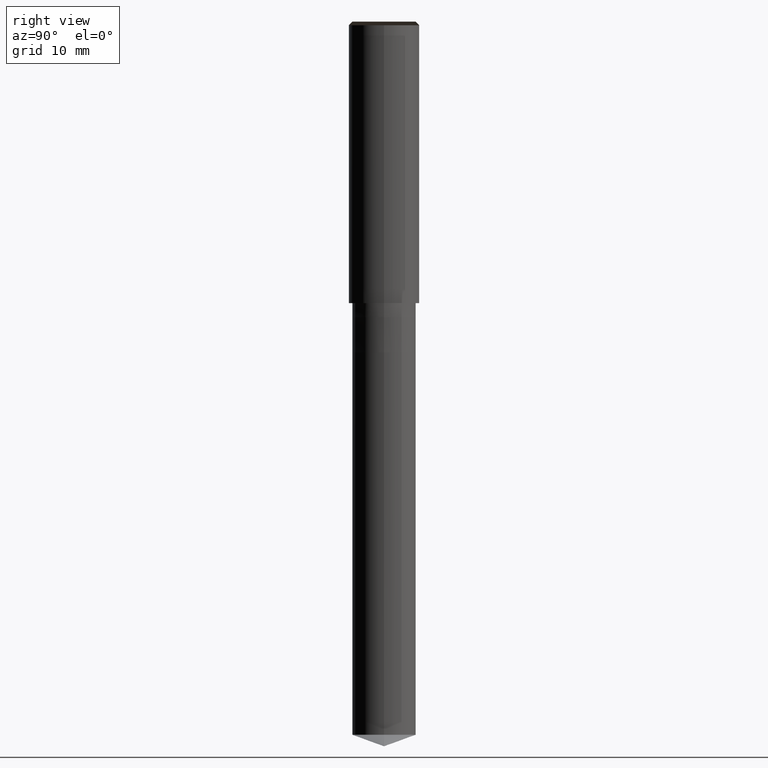
[diagram: clean part render]
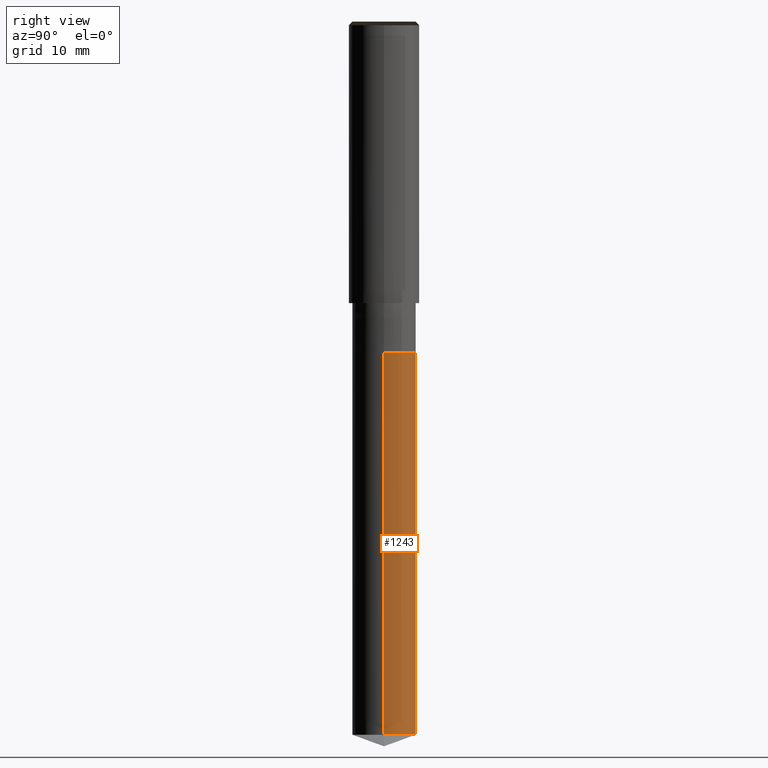
[diagram: same view with one face highlighted and labeled with its STEP entity id]
A machine part, right view. The second image highlights one B-rep face of the part: STEP entity #1243.
In plain terms, the highlighted face is a freeform B-spline surface patch.
Its self-contained STEP definition (entity closure, byte-faithful):
#1145=CARTESIAN_POINT('',(4.5,0.0,-61.362133945802));
#1146=CARTESIAN_POINT('',(4.5,4.5,-61.362133945802));
#1147=CARTESIAN_POINT('',(0.0,4.5,-61.362133945802));
#1148=CARTESIAN_POINT('',(-4.5,4.5,-61.362133945802));
#1149=CARTESIAN_POINT('',(-4.5,0.0,-61.362133945802));
#1150=CARTESIAN_POINT('',(4.5,0.0,-7.0));
#1151=CARTESIAN_POINT('',(4.5,4.5,-7.0));
#1152=CARTESIAN_POINT('',(0.0,4.5,-7.0));
#1153=CARTESIAN_POINT('',(-4.5,4.5,-7.0));
#1154=CARTESIAN_POINT('',(-4.5,0.0,-7.0));
#1224=(
BOUNDED_SURFACE()
B_SPLINE_SURFACE(1,2,(
(#1145,#1146,#1147,#1148,#1149),
(#1150,#1151,#1152,#1153,#1154)
), .UNSPECIFIED.,.F.,.F.,.F.)
B_SPLINE_SURFACE_WITH_KNOTS((2,2),(3,2,3),(
0.0,1.0),(
0.0,0.5,1.0), .UNSPECIFIED.)
GEOMETRIC_REPRESENTATION_ITEM()
RATIONAL_B_SPLINE_SURFACE(((1.0,0.707106781187,1.0,0.707106781187,1.0),
(1.0,0.707106781187,1.0,0.707106781187,1.0)
))
REPRESENTATION_ITEM('')
SURFACE()
);
#1225=(
BOUNDED_CURVE()
B_SPLINE_CURVE(2,(#1149,#1148,#1147,#1146,#1145),.UNSPECIFIED.,.F.,.F.)
B_SPLINE_CURVE_WITH_KNOTS((3,2,3),
(0.0,0.5,1.0),.UNSPECIFIED.)
CURVE()
GEOMETRIC_REPRESENTATION_ITEM()
RATIONAL_B_SPLINE_CURVE((1.0,0.707106781187,1.0,0.707106781187,1.0))
REPRESENTATION_ITEM('')
);
#1226=(
BOUNDED_CURVE()
B_SPLINE_CURVE(1,(#1145,#1150),.UNSPECIFIED.,.F.,.F.)
B_SPLINE_CURVE_WITH_KNOTS((2,2),
(0.0,1.0),.UNSPECIFIED.)
CURVE()
GEOMETRIC_REPRESENTATION_ITEM()
RATIONAL_B_SPLINE_CURVE((1.0,1.0))
REPRESENTATION_ITEM('')
);
#1227=(
BOUNDED_CURVE()
B_SPLINE_CURVE(2,(#1150,#1151,#1152,#1153,#1154),.UNSPECIFIED.,.F.,.F.)
B_SPLINE_CURVE_WITH_KNOTS((3,2,3),
(0.0,0.5,1.0),.UNSPECIFIED.)
CURVE()
GEOMETRIC_REPRESENTATION_ITEM()
RATIONAL_B_SPLINE_CURVE((1.0,0.707106781187,1.0,0.707106781187,1.0))
REPRESENTATION_ITEM('')
);
#1228=(
BOUNDED_CURVE()
B_SPLINE_CURVE(1,(#1154,#1149),.UNSPECIFIED.,.F.,.F.)
B_SPLINE_CURVE_WITH_KNOTS((2,2),
(0.0,1.0),.UNSPECIFIED.)
CURVE()
GEOMETRIC_REPRESENTATION_ITEM()
RATIONAL_B_SPLINE_CURVE((1.0,1.0))
REPRESENTATION_ITEM('')
);
#1229=VERTEX_POINT('',#1145);
#1230=VERTEX_POINT('',#1149);
#1231=VERTEX_POINT('',#1150);
#1232=VERTEX_POINT('',#1154);
#1233=EDGE_CURVE('',#1230,#1229,#1225,.T.);
#1234=EDGE_CURVE('',#1229,#1231,#1226,.T.);
#1235=EDGE_CURVE('',#1231,#1232,#1227,.T.);
#1236=EDGE_CURVE('',#1232,#1230,#1228,.T.);
#1237=ORIENTED_EDGE('',*,*,#1233,.T.);
#1238=ORIENTED_EDGE('',*,*,#1234,.T.);
#1239=ORIENTED_EDGE('',*,*,#1235,.T.);
#1240=ORIENTED_EDGE('',*,*,#1236,.T.);
#1241=EDGE_LOOP('',(#1237,#1238,#1239,#1240));
#1242=FACE_OUTER_BOUND('',#1241,.T.);
#1243=ADVANCED_FACE('',(#1242),#1224,.T.);